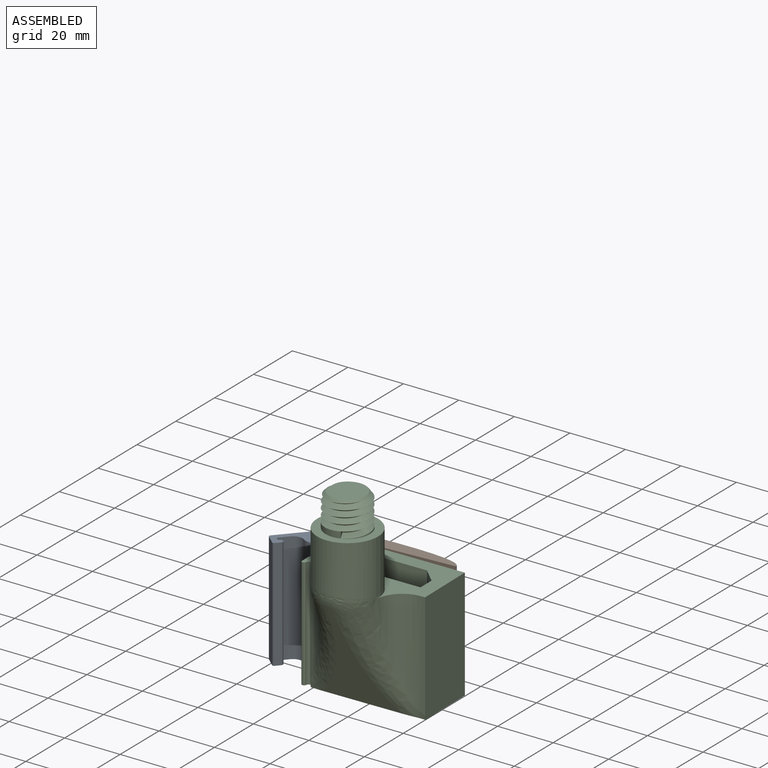
[diagram: assembled view]
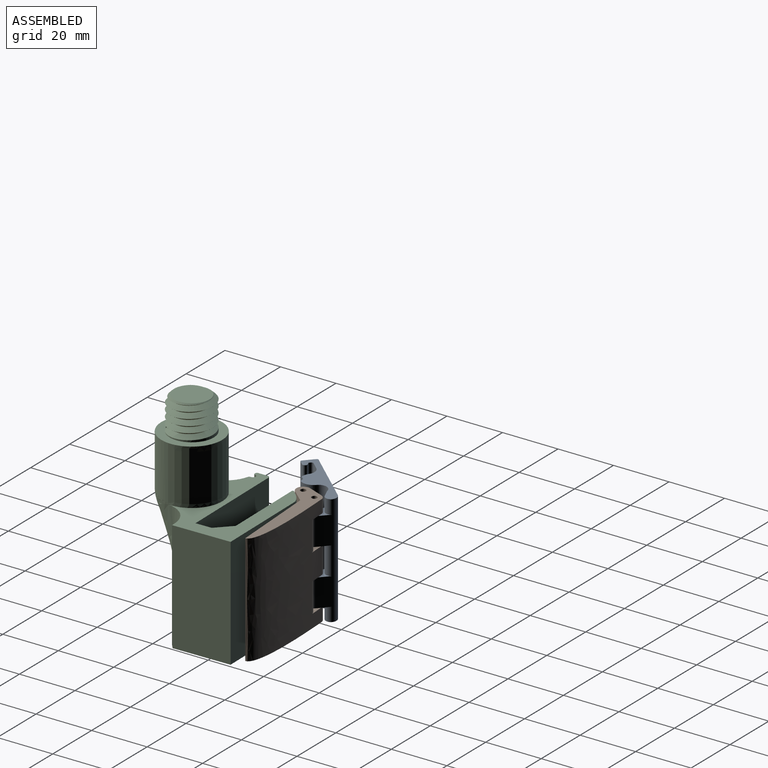
[diagram: assembled view, second angle]
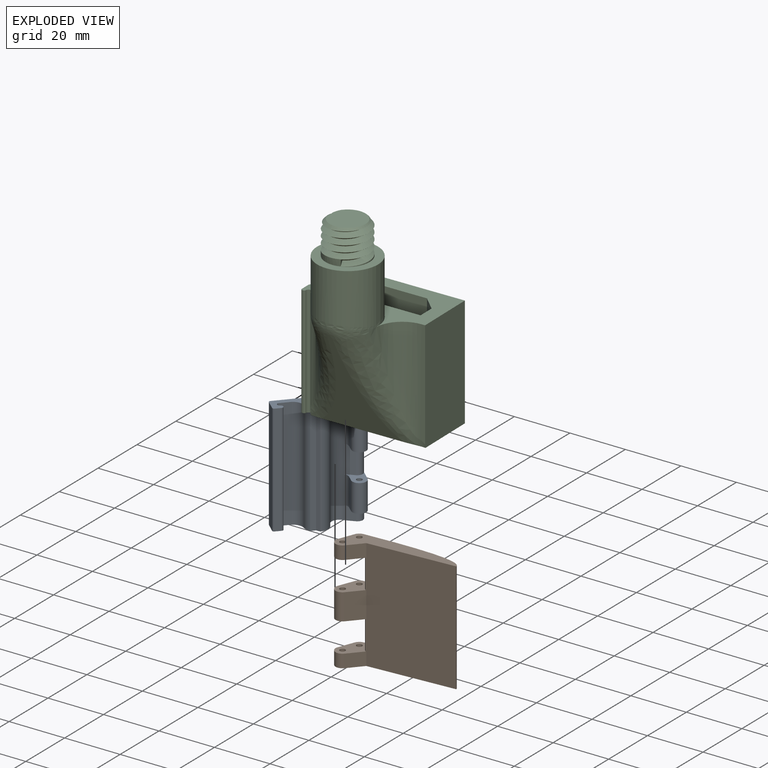
[diagram: exploded view]
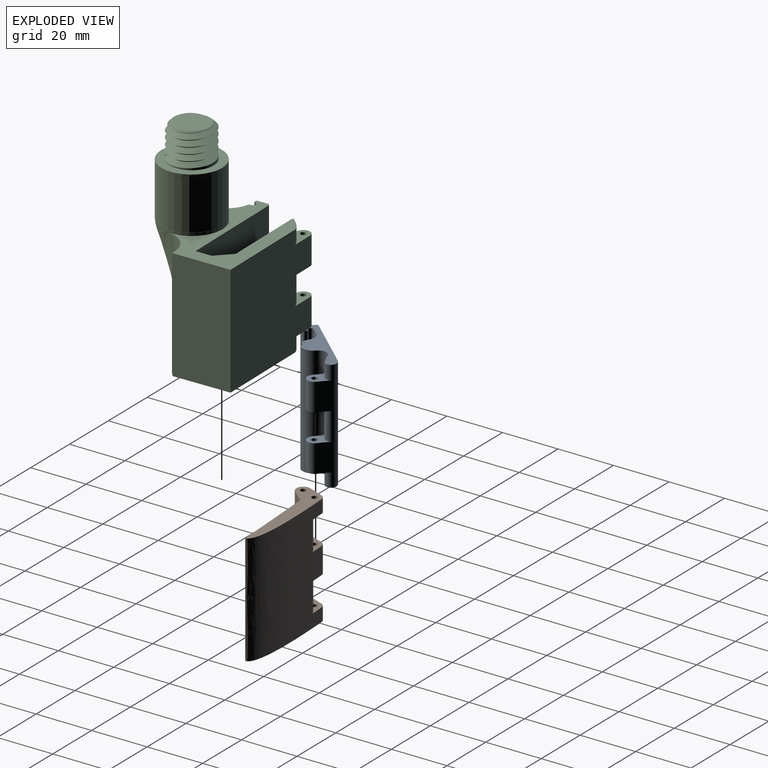
[diagram: exploded view, second angle]
ASSEMBLY  parts=3 mates=2
PART A: 37 faces, bbox 9.6x28.4x40 mm
  f0: plane 10x4.6mm, normal (0,1,0), area 46mm2, adj f4,f12,f26,f31
  f1: cylinder r=2.9mm len=40mm, axis (0,0,1), area 316.4mm2, adj f2,f3,f7,f11,f20,f24,f25,f26
  f2: plane 10x2.5mm, normal (0,-1,0), area 25mm2, adj f1,f4,f26,f31
  f3: plane 10x2.5mm, normal (0,-1,0), area 25mm2, adj f1,f5,f25,f29
  f4: cylinder r=2.5mm len=10mm, axis (0,0,1), area 78.5mm2, adj f0,f2,f26,f31
  f5: cylinder r=2.5mm len=10mm, axis (0,0,1), area 78.5mm2, adj f3,f6,f25,f29
  f6: plane 10x4.6mm, normal (0,1,0), area 46mm2, adj f5,f12,f25,f29
  f7: plane 28.4x8.53mm, normal (0,0,-1), area 120.8mm2, adj f1,f8,f9,f10,f11,f12,f13,f14
  f8: cylinder r=4mm len=40mm, axis (0,0,1), area 113mm2, adj f7,f9,f20,f33
  f9: plane 40x1.8mm, normal (1,0,0), area 72mm2, adj f7,f8,f10,f20
  f10: plane 40x1.03mm, normal (0.71,-0.71,0), area 58.4mm2, adj f7,f9,f11,f20
  f11: cylinder r=4mm len=40mm, axis (0,0,1), area 242.8mm2, adj f1,f7,f10,f20
  f12: cylinder r=2.5mm len=40mm, axis (0,0,1), area 154.9mm2, adj f0,f6,f7,f13,f20,f25,f26,f34
  f13: plane 40x25.3mm, normal (-1,0,0), area 1012mm2, adj f7,f12,f14,f20
  f14: cylinder r=0.6mm len=40mm, axis (0,0,1), area 37.7mm2, adj f7,f13,f15,f20
  f15: plane 40x4.3mm, normal (0,-1,0), area 172mm2, adj f7,f14,f16,f20
  f16: cylinder r=0.6mm len=40mm, axis (0,0,1), area 37.7mm2, adj f7,f15,f17,f20
  f17: plane 40x2mm, normal (1,0,0), area 80mm2, adj f7,f16,f18,f20
  f18: cylinder r=0.9mm len=40mm, axis (0,0,1), area 110.8mm2, adj f7,f17,f19,f20
  f19: cylinder r=0.7mm len=40mm, axis (0,0,1), area 42.2mm2, adj f7,f18,f20,f22
  f20: plane 28.4x8.53mm, normal (0,0,1), area 120.8mm2, adj f1,f8,f9,f10,f11,f12,f13,f14
  f21: plane 40x3.46mm, normal (1,0,0), area 138.5mm2, adj f7,f20,f23,f33
  f22: plane 40x0.3mm, normal (0,1,0), area 12.1mm2, adj f7,f19,f20,f23
  f23: cylinder r=0.7mm len=40mm, axis (0,0,1), area 44mm2, adj f7,f20,f21,f22
  f24: plane 10x3.1mm, normal (0.91,-0.42,0), area 34.1mm2, adj f1,f25,f26,f35
  f25: plane 7.32x5.94mm, normal (0,0,1), area 24.6mm2, adj f1,f3,f5,f6,f12,f24,f27,f35
  f26: plane 7.32x5.94mm, normal (0,0,-1), area 24.6mm2, adj f0,f1,f2,f4,f12,f24,f32,f35
  f27: cylinder r=1mm len=10mm, axis (0,0,1), area 62.8mm2, adj f25,f29
  f28: plane 5x3.14mm, normal (0.91,-0.42,0), area 17.3mm2, adj f1,f7,f29,f34
  f29: plane 7.14x5.94mm, normal (0,0,-1), area 24.4mm2, adj f1,f3,f5,f6,f27,f28,f34
  f30: plane 5x3.14mm, normal (0.91,-0.42,0), area 17.3mm2, adj f1,f20,f31,f36
  f31: plane 7.14x5.94mm, normal (0,0,1), area 24.4mm2, adj f0,f1,f2,f4,f30,f32,f36
  f32: cylinder r=1mm len=10mm, axis (0,0,1), area 62.8mm2, adj f26,f31
  f33: cylinder r=3.5mm len=40mm, axis (0,0,1), area 201.8mm2, adj f7,f8,f20,f21
  f34: cylinder r=2mm len=5mm, axis (0,0,1), area 18mm2, adj f7,f12,f28,f29
  f35: cylinder r=2mm len=10mm, axis (0,0,-1), area 38.1mm2, adj f12,f24,f25,f26
  f36: cylinder r=2mm len=5mm, axis (0,0,1), area 18mm2, adj f12,f20,f30,f31
PART B: 31 faces, bbox 40x10.4x40 mm
  f0: plane 9.47x5.4mm, normal (-0.91,0.42,0), area 56.4mm2, adj f3,f8,f19,f20
  f1: plane 5.4x4.74mm, normal (-0.91,0.42,0), area 28.2mm2, adj f4,f7,f9,f18
  f2: plane 5.4x4.74mm, normal (-0.91,0.42,0), area 28.2mm2, adj f11,f14,f15,f21
  f3: cylinder r=2.5mm len=9.47mm, axis (0,0,1), area 26.9mm2, adj f0,f6,f19,f20
  f4: cylinder r=2.5mm len=4.74mm, axis (0,0,1), area 13.5mm2, adj f1,f6,f7,f18
  f5: cylinder r=1mm len=4.74mm, axis (0,0,1), area 29.8mm2, adj f7,f18
  f6: extruded ~40x35mm, area 1337.6mm2, adj f3,f4,f7,f11,f12,f14,f18,f19
  f7: plane 40x10.4mm, normal (0,0,-1), area 183.8mm2, adj f1,f4,f5,f6,f9,f10,f12,f13
  f8: cylinder r=2.5mm len=9.47mm, axis (0,0,1), area 66.1mm2, adj f0,f10,f19,f20
  f9: cylinder r=2.5mm len=4.74mm, axis (0,0,1), area 33mm2, adj f1,f7,f10,f18
  f10: plane 40x4.68mm, normal (0.71,-0.71,0), area 129.9mm2, adj f7,f8,f9,f11,f15,f18,f19,f20
  f11: plane 40x10.4mm, normal (0,0,1), area 183.8mm2, adj f2,f6,f10,f12,f14,f15,f16,f17
  f12: plane 40x30.94mm, normal (0,-1,0), area 1237.6mm2, adj f6,f7,f11,f22
  f13: cylinder r=1mm len=4.74mm, axis (0,0,1), area 29.8mm2, adj f7,f18
  f14: cylinder r=2.5mm len=4.74mm, axis (0,0,1), area 13.5mm2, adj f2,f6,f11,f21
  f15: cylinder r=2.5mm len=4.74mm, axis (0,0,1), area 33mm2, adj f2,f10,f11,f21
  f16: cylinder r=1mm len=4.74mm, axis (0,0,1), area 29.8mm2, adj f11,f21
  f17: cylinder r=1mm len=4.74mm, axis (0,0,1), area 29.8mm2, adj f11,f21
  f18: plane 10.51x10.4mm, normal (0,0,1), area 53.8mm2, adj f1,f4,f5,f6,f9,f10,f13,f25
  f19: plane 10.51x10.4mm, normal (0,0,-1), area 53.8mm2, adj f0,f3,f6,f8,f10,f23,f25,f26
  f20: plane 10.51x10.4mm, normal (0,0,1), area 53.8mm2, adj f0,f3,f6,f8,f10,f23,f24,f26
  f21: plane 10.51x10.4mm, normal (0,0,-1), area 53.8mm2, adj f2,f6,f10,f14,f15,f16,f17,f24
  f22: plane 40x0.11mm, normal (-0.11,-0.99,0), area 4.5mm2, adj f7,f10,f11,f12
  f23: cylinder r=1mm len=9.47mm, axis (0,0,1), area 59.5mm2, adj f19,f20
  f24: cylinder r=2.76mm len=10.53mm, axis (0,0,1), area 1.4mm2, adj f20,f21,f29,f30
  f25: cylinder r=2.76mm len=10.53mm, axis (0,0,1), area 1.4mm2, adj f18,f19,f27,f28
  f26: cylinder r=1mm len=9.47mm, axis (0,0,1), area 59.5mm2, adj f19,f20
  f27: cylinder r=2.7mm len=10.53mm, axis (0,0,1), area 43.8mm2, adj f6,f18,f19,f25
  f28: cylinder r=2.7mm len=10.53mm, axis (0,0,-1), area 28.6mm2, adj f10,f18,f19,f25
  f29: cylinder r=2.7mm len=10.53mm, axis (0,0,1), area 43.8mm2, adj f6,f20,f21,f24
  f30: cylinder r=2.7mm len=10.53mm, axis (0,0,-1), area 28.6mm2, adj f10,f20,f21,f24
PART C: 55 faces, bbox 46.5x40.8x75.7 mm
  f0: cylinder r=10mm len=36.32mm, axis (0,0,-1), area 218.3mm2, adj f4,f18,f54
  f1: cylinder r=10.94mm len=21.77mm, axis (0,0,-1), area 630.4mm2, adj f25,f26,f53
  f2: plane 44.4x20.9mm, normal (0,0,-1), area 474.1mm2, adj f4,f5,f14,f15,f16,f19,f20,f21
  f3: cylinder r=10mm len=37.75mm, axis (0,0,-1), area 354.2mm2, adj f18,f22,f52
  f4: cylinder r=0.6mm len=40mm, axis (0,0,-1), area 30.2mm2, adj f0,f2,f18,f33,f54
  f5: cylinder r=10mm len=5mm, axis (0,0,-1), area 22.2mm2, adj f2,f12,f15,f40
  f6: cylinder r=10mm len=10mm, axis (0,0,-1), area 44.5mm2, adj f9,f10,f13,f15
  f7: cylinder r=10mm len=5mm, axis (0,0,-1), area 22.2mm2, adj f8,f11,f15,f18
  f8: plane 5x2mm, normal (-0.71,0.71,0), area 14.1mm2, adj f7,f11,f18,f46
  f9: plane 10x2mm, normal (-0.71,0.71,0), area 28.2mm2, adj f6,f10,f13,f47
  f10: plane 10.28x5mm, normal (0,0,-1), area 27.3mm2, adj f6,f9,f14,f15,f35,f37,f41,f45
  f11: plane 10.28x5mm, normal (0,0,1), area 27.3mm2, adj f7,f8,f14,f15,f35,f37,f43,f44
  f12: plane 10.28x5mm, normal (0,0,-1), area 27.3mm2, adj f5,f14,f15,f34,f36,f40,f42,f48
  f13: plane 10.28x5mm, normal (0,0,1), area 27.3mm2, adj f6,f9,f14,f15,f34,f36,f41,f45
  f14: plane 40x31.78mm, normal (0,-1,0), area 1225.2mm2, adj f2,f10,f11,f12,f13,f18,f20,f34
  f15: plane 41.9x40mm, normal (0,1,0), area 1520.3mm2, adj f2,f5,f6,f7,f10,f11,f12,f13
  f16: plane 40x3.4mm, normal (-1,0,0), area 136mm2, adj f2,f18,f39,f50
  f17: cylinder r=7.94mm len=15.88mm, axis (0,0,-1), area 56.8mm2, adj f26,f28,f29,f30,f31
  f18: plane 44.4x29.89mm, normal (0,0,1), area 503.2mm2, adj f0,f3,f4,f7,f8,f14,f15,f16
  f19: plane 40x38.4mm, normal (0,1,0), area 1536mm2, adj f2,f18,f24,f50
  f20: plane 40x5.12mm, normal (-0.71,-0.71,0), area 289.5mm2, adj f2,f14,f18,f24
  f21: plane 40x0.3mm, normal (0,-1,0), area 12.1mm2, adj f2,f18,f38,f39
  f22: plane 38.81x1.36mm, normal (0,-1,0), area 52.1mm2, adj f3,f18,f23,f52
  f23: plane 40.02x20.92mm, normal (1,0,0), area 835.9mm2, adj f2,f15,f18,f22,f52
  f24: plane 40x5.78mm, normal (-1,0,0), area 231.3mm2, adj f2,f18,f19,f20
  f25: extruded ~21.87x20mm, area 729.4mm2, adj f1,f18,f26,f52,f54
  f26: plane 21.88x21.88mm, normal (0,0,1), area 177.9mm2, adj f1,f17,f25
  f27: plane 13.02x12.65mm, normal (0,0,1), area 128.5mm2, adj f28,f30,f31
  f28: cone r=6.44mm half-angle=45deg, axis (0,0,-1), area 36.9mm2, adj f17,f27,f30,f31
  f29: plane 2.3x1.81mm, normal (0.94,0.33,0), area 2.2mm2, adj f17,f30,f31
  f30: bspline ~18.33x15.88mm, area 457mm2, adj f17,f27,f28,f29,f31
  f31: bspline ~18.33x15.88mm, area 406.7mm2, adj f17,f27,f28,f29,f30
  f32: cylinder r=1mm len=40mm, axis (0,0,1), area 123.2mm2, adj f2,f18,f33,f38
  f33: plane 40x0.26mm, normal (-1,0,0), area 10.4mm2, adj f2,f4,f18,f32
  f34: cylinder r=2.5mm len=10mm, axis (0,0,-1), area 78.5mm2, adj f12,f13,f14,f15
  f35: cylinder r=2.5mm len=10mm, axis (0,0,-1), area 78.5mm2, adj f10,f11,f14,f15
  f36: cylinder r=1mm len=10mm, axis (0,0,1), area 62.8mm2, adj f12,f13
  f37: cylinder r=1mm len=10mm, axis (0,0,1), area 62.8mm2, adj f10,f11
  f38: cylinder r=0.6mm len=40mm, axis (0,0,1), area 36.2mm2, adj f2,f18,f21,f32
  f39: cylinder r=0.6mm len=40mm, axis (0,0,-1), area 37.7mm2, adj f2,f16,f18,f21
  f40: plane 5x2mm, normal (-0.71,0.71,0), area 14.1mm2, adj f2,f5,f12,f48
  f41: plane 10x0.05mm, normal (-1,0,0), area 0.5mm2, adj f10,f13,f45,f47
  f42: plane 5x0.05mm, normal (-1,0,0), area 0.3mm2, adj f2,f12,f48,f49
  f43: plane 5x0.05mm, normal (-1,0,0), area 0.3mm2, adj f11,f18,f44,f46
  f44: cylinder r=0.35mm len=5mm, axis (0,0,1), area 2.7mm2, adj f11,f14,f18,f43
  f45: cylinder r=0.35mm len=10mm, axis (0,0,1), area 5.5mm2, adj f10,f13,f14,f41
  f46: cylinder r=0.35mm len=5mm, axis (0,0,1), area 1.4mm2, adj f8,f11,f18,f43
  f47: cylinder r=0.35mm len=10mm, axis (0,0,1), area 2.7mm2, adj f9,f10,f13,f41
  f48: cylinder r=0.35mm len=5mm, axis (0,0,1), area 1.4mm2, adj f2,f12,f40,f42
  f49: cylinder r=0.35mm len=5mm, axis (0,0,1), area 2.7mm2, adj f2,f12,f14,f42
  f50: cylinder r=1mm len=40mm, axis (0,0,1), area 62.8mm2, adj f2,f16,f18,f19
  f51: plane 37.97x29.43mm, normal (0,-0.9,-0.43), area 399.9mm2, adj f2,f52,f53,f54
  f52: bspline ~44.77x23.32mm, area 433.1mm2, adj f2,f3,f18,f22,f23,f25,f51,f53
  f53: bspline ~21.77x9.88mm, area 125.5mm2, adj f1,f51,f52,f54
  f54: bspline ~48.06x20.72mm, area 424.6mm2, adj f0,f2,f4,f18,f25,f51,f53
PLACE A rot(axis=(0,0,-1),42.1deg) t=(-14.17,10.24,1.42)mm
PLACE B rot(axis=(0,0,1),3.5deg) t=(0,19.41,1.42)mm
PLACE C rot(axis=(0,0,1),0.9deg) t=(-0.34,18.48,1.42)mm fixed
MATE cylindrical C.f34 <-> B.f8  axis (0,0,1) through (-20.16,26.13,36.42)mm
MATE cylindrical A.f4 <-> B.f3  axis (0,0,1) through (-17.99,31.67,36.42)mm
